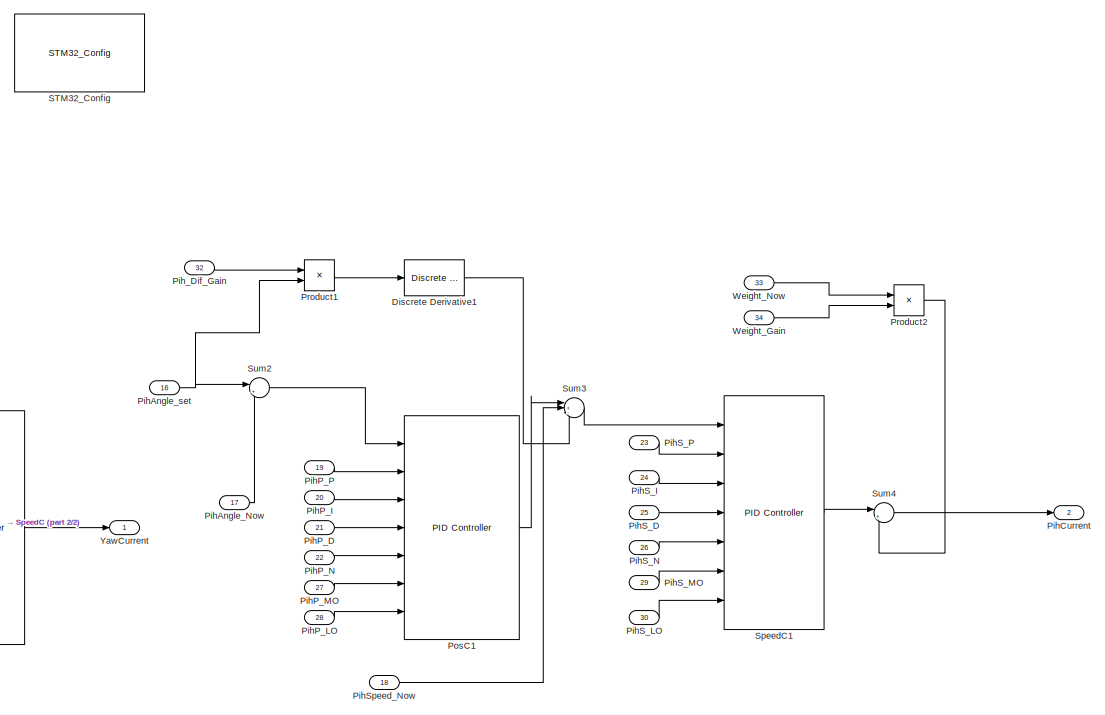
[diagram: root canvas - part 1/2, right side, full height]
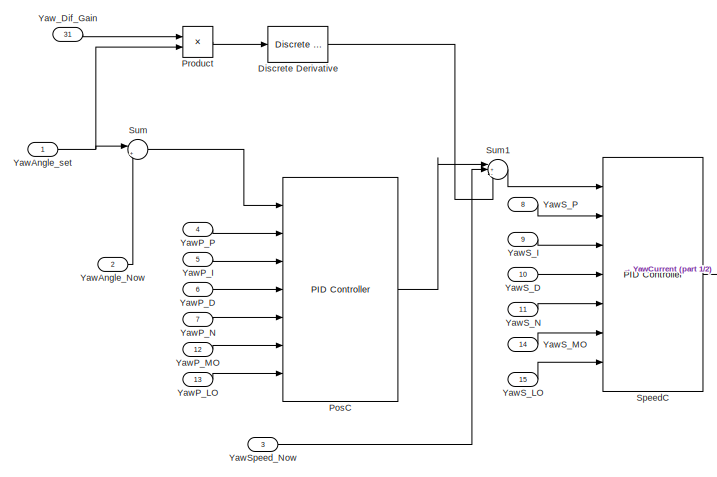
[diagram: root canvas - part 2/2, bottom left region]
MODEL slx_3d96653c26bc
KIND model
CONFIG AbsTol = auto
CONFIG EnableMultiTasking = off
CONFIG FixedStep = auto
CONFIG MaxStep = auto
CONFIG MinStep = auto
CONFIG RelTol = 1e-3
CONFIG SampleTimeConstraint = Unconstrained
CONFIG SolverName = VariableStepAuto
CONFIG StartTime = 0.0
CONFIG StopTime = 10.0
WORKSPACE source: mxarray member
WORKSPACE P_ErrAllMax = 30
WORKSPACE P_OutStep = 100
WORKSPACE S_ErrAllMax = 30
WORKSPACE S_OutStep = 100
BLOCK [Reference] Discrete Derivative  REF=simulink/Discrete/Discrete Derivative
  Ports = [1, 1]
  SourceBlock = simulink/Discrete/Discrete Derivative
  SourceProductBaseCode = SL
  SourceType = Discrete Derivative
BLOCK [Reference] Discrete Derivative1  REF=simulink/Discrete/Discrete Derivative
  Ports = [1, 1]
  SourceBlock = simulink/Discrete/Discrete Derivative
  SourceProductBaseCode = SL
  SourceType = Discrete Derivative
BLOCK [Inport] PihAngle_Now
  Port = 17
BLOCK [Inport] PihAngle_set
  Port = 16
BLOCK [Outport] PihCurrent
  Port = 2
BLOCK [Inport] PihP_D
  Port = 21
BLOCK [Inport] PihP_I
  Port = 20
BLOCK [Inport] PihP_LO
  Port = 28
BLOCK [Inport] PihP_MO
  Port = 27
BLOCK [Inport] PihP_N
  Port = 22
BLOCK [Inport] PihP_P
  Port = 19
BLOCK [Inport] PihS_D
  Port = 25
BLOCK [Inport] PihS_I
  Port = 24
BLOCK [Inport] PihS_LO
  Port = 30
BLOCK [Inport] PihS_MO
  Port = 29
BLOCK [Inport] PihS_N
  Port = 26
BLOCK [Inport] PihS_P
  Port = 23
BLOCK [Inport] PihSpeed_Now
  Port = 18
BLOCK [Inport] Pih_Dif_Gain
  Port = 32
BLOCK [Reference] PosC  REF=pid_lib/PID Controller
  Ports = [7, 1]
  SourceBlock = pid_lib/PID Controller
  SourceProductBaseCode = SL
  SourceType = PID 1dof
BLOCK [Reference] PosC1  REF=pid_lib/PID Controller
  Ports = [7, 1]
  SourceBlock = pid_lib/PID Controller
  SourceProductBaseCode = SL
  SourceType = PID 1dof
BLOCK [Product] Product
  Ports = [2, 1]
BLOCK [Product] Product1
  Ports = [2, 1]
BLOCK [Product] Product2
  Ports = [2, 1]
BLOCK [Reference] STM32_Config  REF=STM32_Config_Lib/STM32_Config
  NameLocation = top
  Ports = []
  Priority = 0
  SourceBlock = STM32_Config_Lib/STM32_Config
  SourceProductName = Target Support Package - STM32 Adapter
  SourceType = STM32_Config
BLOCK [Reference] SpeedC  REF=pid_lib/PID Controller
  Ports = [7, 1]
  SourceBlock = pid_lib/PID Controller
  SourceProductBaseCode = SL
  SourceType = PID 1dof
BLOCK [Reference] SpeedC1  REF=pid_lib/PID Controller
  Ports = [7, 1]
  SourceBlock = pid_lib/PID Controller
  SourceProductBaseCode = SL
  SourceType = PID 1dof
BLOCK [Sum] Sum
  Inputs = |+-
  Ports = [2, 1]
BLOCK [Sum] Sum1
  Inputs = |+-+
  Ports = [3, 1]
BLOCK [Sum] Sum2
  Inputs = |+-
  Ports = [2, 1]
BLOCK [Sum] Sum3
  Inputs = |+-+
  Ports = [3, 1]
BLOCK [Sum] Sum4
  Inputs = |++
  Ports = [2, 1]
BLOCK [Inport] Weight_Gain
  Port = 34
BLOCK [Inport] Weight_Now
  Port = 33
BLOCK [Inport] YawAngle_Now
  Port = 2
BLOCK [Inport] YawAngle_set
BLOCK [Outport] YawCurrent
BLOCK [Inport] YawP_D
  Port = 6
BLOCK [Inport] YawP_I
  Port = 5
BLOCK [Inport] YawP_LO
  Port = 13
BLOCK [Inport] YawP_MO
  Port = 12
BLOCK [Inport] YawP_N
  Port = 7
BLOCK [Inport] YawP_P
  Port = 4
BLOCK [Inport] YawS_D
  Port = 10
BLOCK [Inport] YawS_I
  Port = 9
BLOCK [Inport] YawS_LO
  Port = 15
BLOCK [Inport] YawS_MO
  Port = 14
BLOCK [Inport] YawS_N
  Port = 11
BLOCK [Inport] YawS_P
  Port = 8
BLOCK [Inport] YawSpeed_Now
  Port = 3
BLOCK [Inport] Yaw_Dif_Gain
  Port = 31
LINE Discrete Derivative1:1 -> Sum3:3
LINE Discrete Derivative:1 -> Sum1:3
LINE PihAngle_Now:1 -> Sum2:2
NET PihAngle_set:1 -> Product1:2, Sum2:1
LINE PihP_D:1 -> PosC1:4
LINE PihP_I:1 -> PosC1:3
LINE PihP_LO:1 -> PosC1:7
LINE PihP_MO:1 -> PosC1:6
LINE PihP_N:1 -> PosC1:5
LINE PihP_P:1 -> PosC1:2
LINE PihS_D:1 -> SpeedC1:4
LINE PihS_I:1 -> SpeedC1:3
LINE PihS_LO:1 -> SpeedC1:7
LINE PihS_MO:1 -> SpeedC1:6
LINE PihS_N:1 -> SpeedC1:5
LINE PihS_P:1 -> SpeedC1:2
LINE PihSpeed_Now:1 -> Sum3:2
LINE Pih_Dif_Gain:1 -> Product1:1
LINE PosC1:1 -> Sum3:1
LINE PosC:1 -> Sum1:1
LINE Product1:1 -> Discrete Derivative1:1
LINE Product2:1 -> Sum4:2
LINE Product:1 -> Discrete Derivative:1
LINE SpeedC1:1 -> Sum4:1
LINE SpeedC:1 -> YawCurrent:1
LINE Sum1:1 -> SpeedC:1
LINE Sum2:1 -> PosC1:1
LINE Sum3:1 -> SpeedC1:1
LINE Sum4:1 -> PihCurrent:1
LINE Sum:1 -> PosC:1
LINE Weight_Gain:1 -> Product2:2
LINE Weight_Now:1 -> Product2:1
LINE YawAngle_Now:1 -> Sum:2
NET YawAngle_set:1 -> Product:2, Sum:1
LINE YawP_D:1 -> PosC:4
LINE YawP_I:1 -> PosC:3
LINE YawP_LO:1 -> PosC:7
LINE YawP_MO:1 -> PosC:6
LINE YawP_N:1 -> PosC:5
LINE YawP_P:1 -> PosC:2
LINE YawS_D:1 -> SpeedC:4
LINE YawS_I:1 -> SpeedC:3
LINE YawS_LO:1 -> SpeedC:7
LINE YawS_MO:1 -> SpeedC:6
LINE YawS_N:1 -> SpeedC:5
LINE YawS_P:1 -> SpeedC:2
LINE YawSpeed_Now:1 -> Sum1:2
LINE Yaw_Dif_Gain:1 -> Product:1
note: NET lines group one-source signal fan-out (src -> all destinations, sorted); 1:1 wires keep LINE
